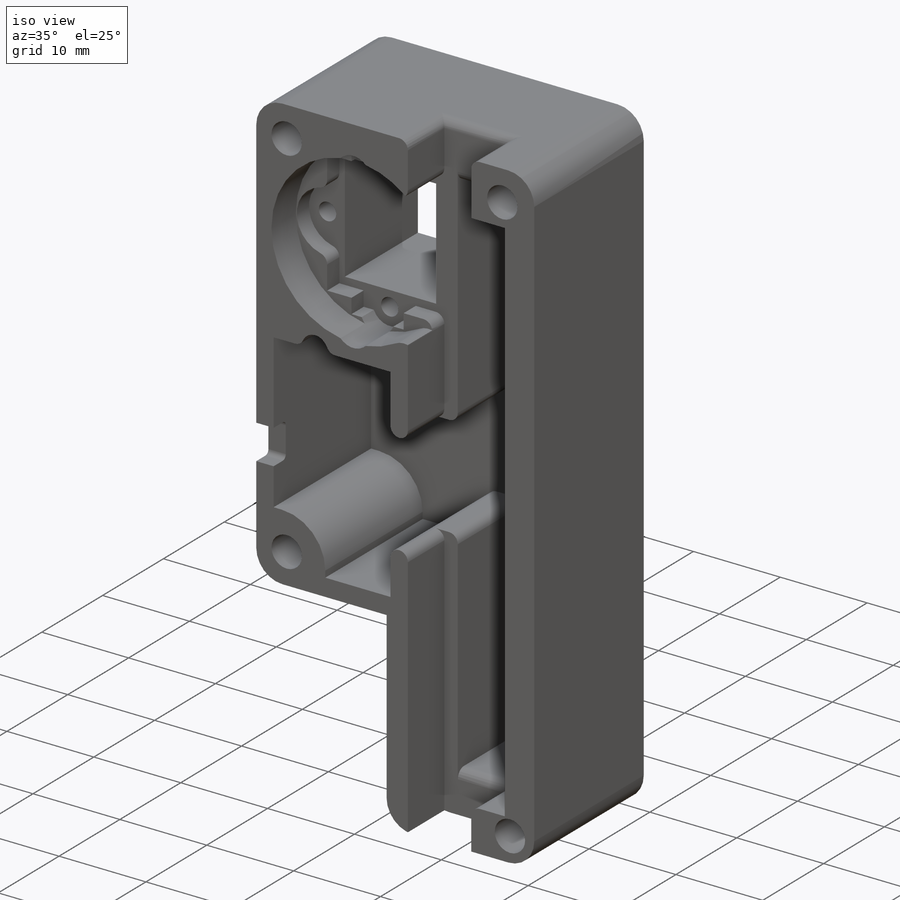
[diagram: iso view]
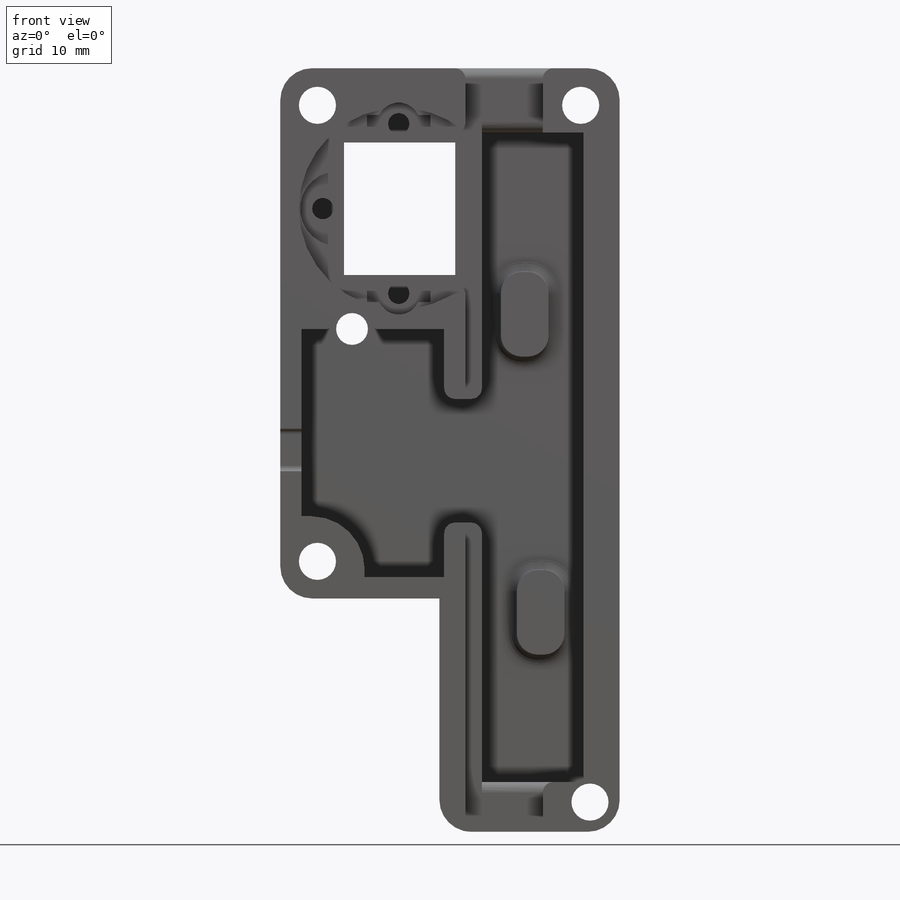
[diagram: front view]
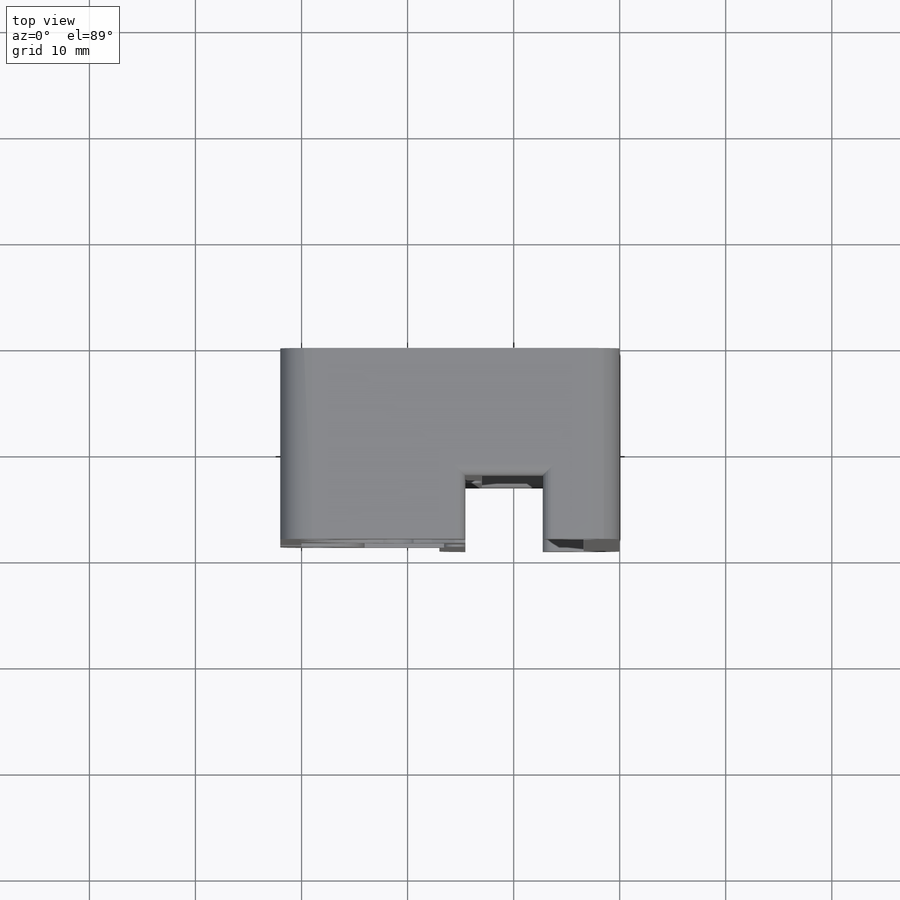
[diagram: top view]
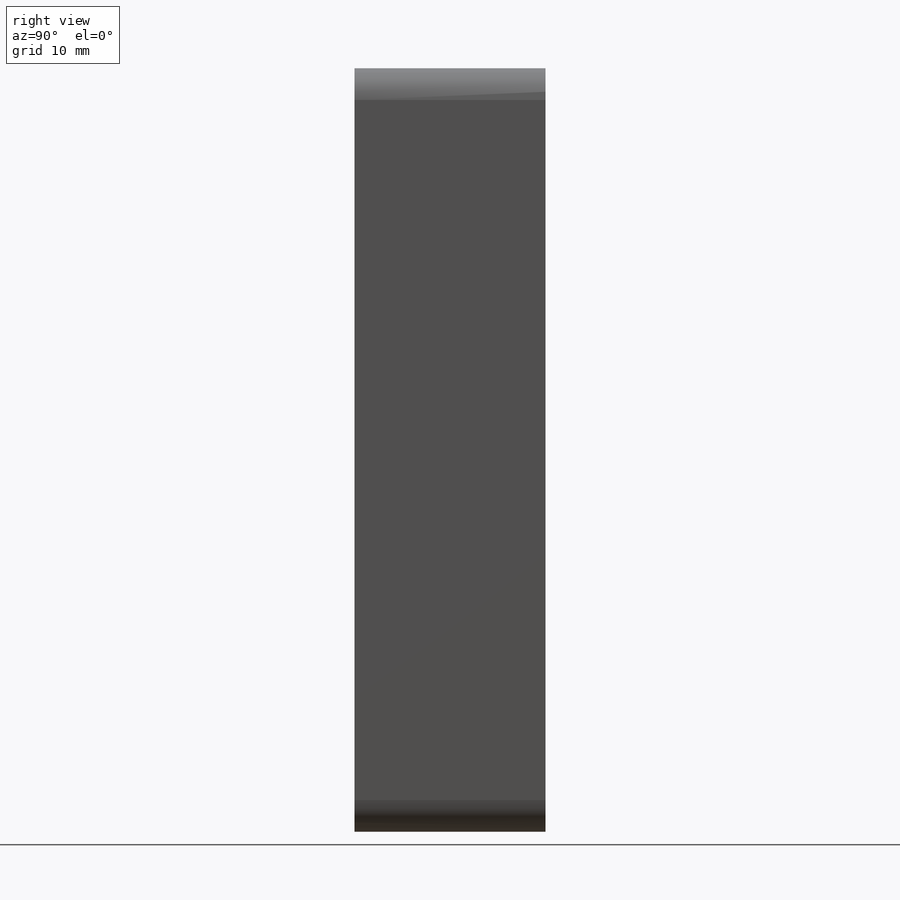
[diagram: right view]
SOLIDWORKS PART (.sldprt)
format: sldprt  version: not decoded by parser v0  size: 904,704 bytes
history: native  units: mm
features: fillet x19, sketch x16, cut_extrude x14, plane x3, extrude x2, material x1 (+10 scaffold rows collapsed)
feature tree (65):
  scaffold x10  (default folders/planes/origin — collapsed)
  material  "Material <nicht angegeben>"
  plane  "Ebene vorne"
  plane  "Ebene oben"
  plane  "Ebene rechts"
  sketch  "body-sketch"  dims[c1.D1=~70.819372mm c1.D2=~47.583536mm c2.D1=32.0mm c2.D2=50.0mm c2.D3=~92.155092mm c2.D4=~17.270267mm c3.D3=17.0mm c3.D4=72.0mm c3.D5=~17.224973mm c3.D6=~15.153632mm c4.D5=12.5mm c4.D6=10.5mm c4.D7=7.0mm c4.D8=6.0mm]
  extrude  "body"  Depth=18mm
  sketch  "gear_box"  dims[D1=~16.324828mm D2=13.25mm D3=11.25mm]
  cut_extrude  "gear_profile"  Depth=4mm
  sketch  "screwhole1"  dims[D1=3.5mm D4=3.5mm D2=3.5mm D3=3.5mm D5=2.8mm D6=2.8mm]
  cut_extrude  "screw1"  [1 undecoded]
  fillet  "Verrundung2"  Radius=3mm
  sketch  "glider"  dims[c1.D1=~63.085239mm c1.D2=~7.51668mm c2.D1=9.6mm c2.D2=61.2mm c2.D3=4.0mm c2.D4=3.4mm c2.D5=6.1mm]
  cut_extrude  "glider_rut"  Depth=16mm
  fillet  "Verrundung4"  Radius=2mm
  sketch  "holder of glider"  dims[c1.D1=~3.792388mm c1.D2=~4.310039mm c2.D1=~4.108421mm c2.D2=~4.310039mm c3.D1=~40.452142mm c3.D2=~39.073599mm c4.D1=~4.740485mm c4.D2=0.0mm c5.D1=~6.320647mm c5.D2=0.0mm c6.D1=13.0mm c6.D2=~58.743165mm c7.D1=16.5mm c7.D2=4.5mm c7.D3=8.0mm c7.D4=~3.494466mm c7.D5=~7.463474mm c8.D4=16.5mm c8.D5=8.0mm c8.D6=4.5mm]
  extrude  "glider-holder"  Depth=4.3mm
  fillet  "Verrundung5"  Radius=2mm
  fillet  "Verrundung6"  Radius=1mm
  fillet  "Verrundung7"  Radius=1mm
  sketch  "Pinion rut"  dims[c1.D1=9.5mm c1.D2=~3.943149mm c1.D3=~6.523848mm c2.D2=75.0mm c2.D3=~5.446463mm c3.D2=4.5mm c3.D3=75.0mm]
  cut_extrude  "pinion rut cut"  Depth=5mm
  fillet  "Verrundung8"  Radius=2mm
  sketch  "sketch pinion channel"  dims[c1.D1=~68.73401mm c1.D2=~53.592758mm c2.D1=~7.693862mm c2.D2=~6.497386mm c3.D1=7.3mm c3.D2=75.0mm]
  cut_extrude  "pinion channel"  Depth=6mm
  fillet  "Verrundung10"  Radius=1mm
  fillet  "Verrundung11"  Radius=1mm
  sketch  "motor-holder"  dims[c1.D1=~17.567651mm c1.D2=~5.685339mm c2.D1=17.6mm c2.D2=6.0mm c2.D3=~11.225668mm c2.D4=~14.693426mm c3.D3=~14.105912mm c3.D4=~12.390169mm c4.D3=14.2mm c4.D4=12.2mm c4.D5=4.0mm c4.D6=~16.324828mm c5.D4=3.5mm c5.D5=2.8mm c5.D6=2.8mm]
  cut_extrude  "motor -holder"  Depth=2mm
  sketch  "Skizze1"  dims[D1=~34.764911mm D2=16.0mm D3=8.0mm]
  cut_extrude  "motor-screw"  Depth=10mm
  sketch  "Skizze2"  dims[D1=4.0mm]
  cut_extrude  "Schnitt-Linear austragen2"  Depth=2mm
  sketch  "Skizze3"  dims[D1=~0.064049mm]
  cut_extrude  "Schnitt-Linear austragen3"  Depth=2mm
  fillet  "Verrundung12"  Radius=1mm
  fillet  "Verrundung13"  Radius=1mm
  sketch  "left hole"  dims[D1=12.5mm D2=7.25mm]
  cut_extrude  "center-hole-left"  Depth=10mm
  sketch  "cage"  dims[c1.D1=~23.800668mm c1.D2=~12.790624mm c2.D1=13.0mm c2.D2=24.0mm c2.D3=~12.910708mm c3.D1=2.0mm c3.D2=2.0mm c3.D3=2.0mm c3.D4=2.0mm c4.D1=~7.502523mm]
  cut_extrude  "electro-cage"  Depth=16mm
  sketch  "Skizze6"  dims[D1=3.0mm]
  cut_extrude  "Schnitt-Linear austragen5"  Depth=18mm
  sketch  "Skizze7"  dims[c1.D1=~4.641577mm c1.D3=3.5mm c2.D1=3.5mm c2.D2=3.5mm]
  cut_extrude  "Schnitt-Linear austragen6"  Depth=18mm
  fillet  "Verrundung14"  Radius=3mm
  fillet  "Verrundung15"  Radius=5mm
  fillet  "Verrundung16"  Radius=1mm
  fillet  "Verrundung17"  Radius=1mm
  fillet  "Verrundung18"  Radius=1mm
  fillet  "Verrundung19"  Radius=1mm
  fillet  "Verrundung20"  Radius=1mm
  fillet  "Verrundung21"  Radius=3mm
  sketch  "Skizze8"  dims[c1.D1=~42.412126mm c1.D2=~52.120317mm c2.D1=~6.30886mm c2.D2=~2.466677mm c3.D1=~3.695662mm c3.D2=2.0mm c4.D1=4.0mm c4.D2=12.0mm]
  cut_extrude  "Schnitt-Linear austragen7"  Depth=2mm
  fillet  "Verrundung22"  Radius=0.5mm
decode coverage: 50 of 51 modeling features carry decoded parameters
note: ~ marks probable driven/reference dimensions
note: 1 parameter value undecoded
note: suppression state not decoded; provenance and decode notes live in map.json
